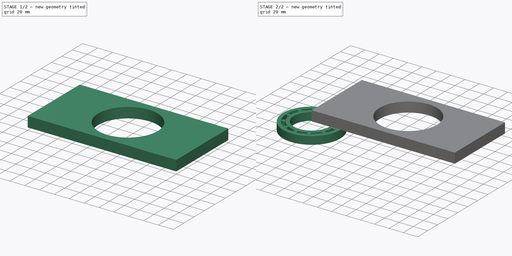
[diagram: build sequence overview — one tinted view per stage of 2, left to right]
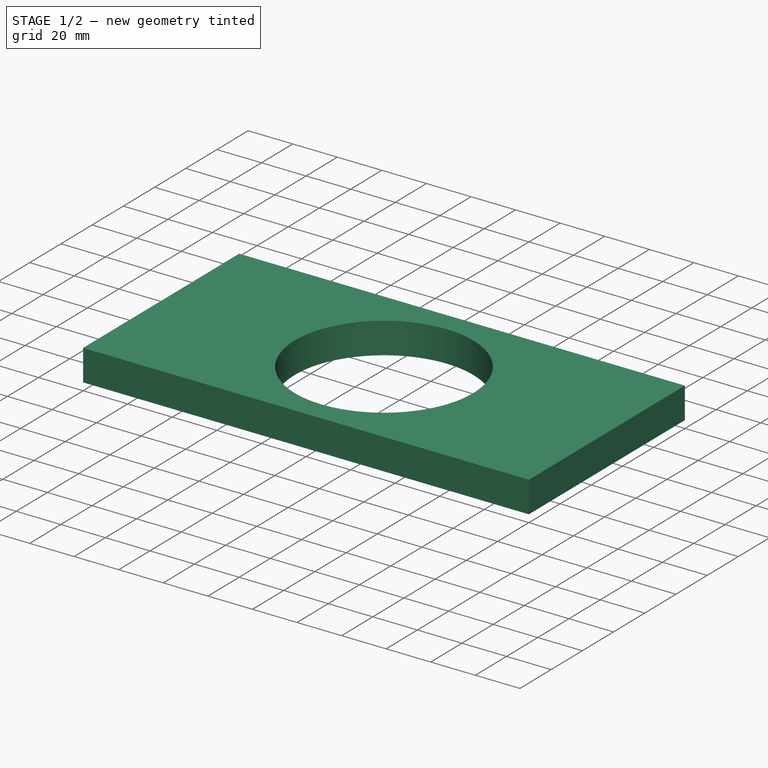
[diagram: stage 1 of 2 — iso view after this stage's code; geometry added in this stage tinted green]
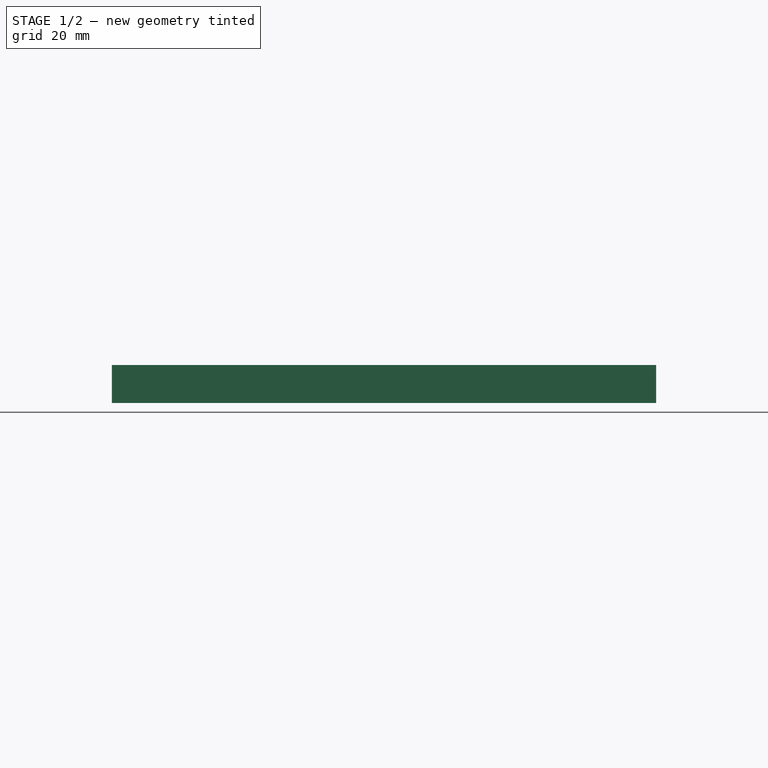
[diagram: stage 1 of 2 — front view after this stage's code; geometry added in this stage tinted green]
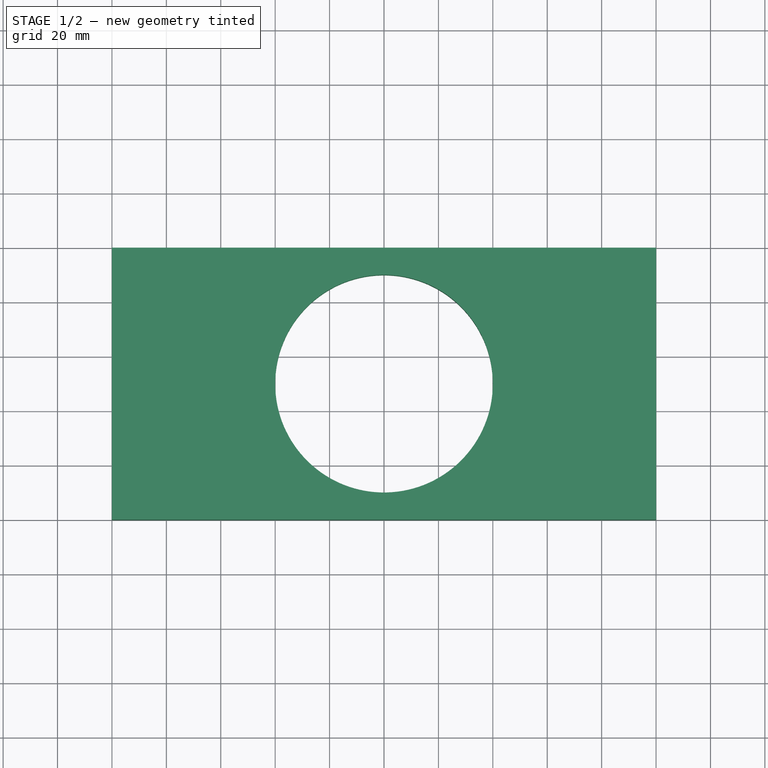
[diagram: stage 1 of 2 — top view after this stage's code; geometry added in this stage tinted green]
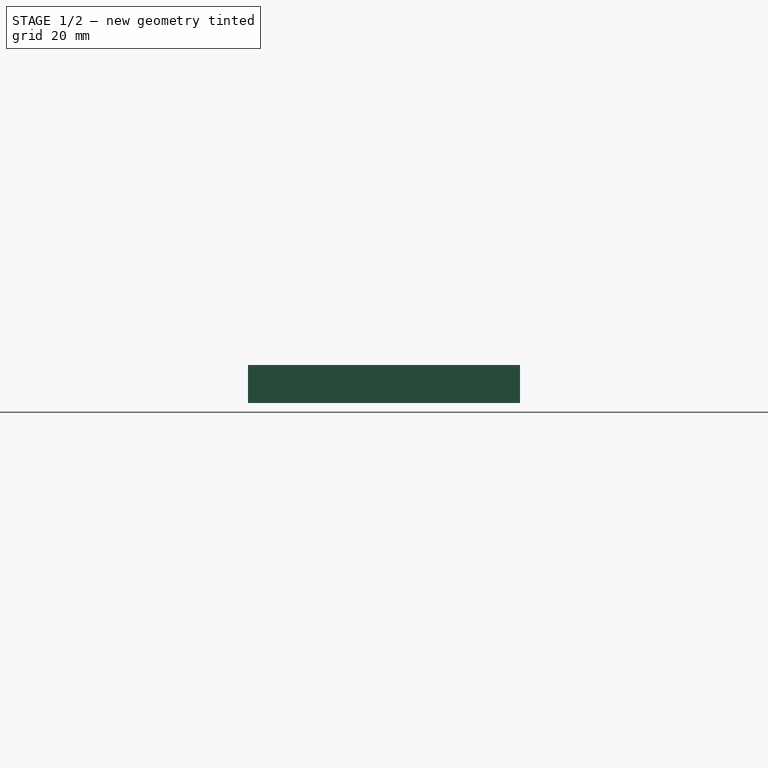
[diagram: stage 1 of 2 — right view after this stage's code; geometry added in this stage tinted green]
FCSTD DOCUMENT  (FreeCAD 0.19R24276 (Git))
Label: Assambly_Plate_200x100_otv_d80_bear
License: All rights reserved
LicenseURL: http://en.wikipedia.org/wiki/All_rights_reserved
objects: App::FeaturePython×4, Sketcher::SketchObject×1, PartDesign::Pad×1, PartDesign::Body×1, Part::FeaturePython×1
note: 5 computed .brp shape members not serialized (recipe doc carries the construction recipe); baked Part::Feature solids carry a one-line shape summary decoded from their .brp

FEATURE [Sketcher::SketchObject] Sketch
  FullyConstrained = true
  MapMode = 5
  Support = -> [XY_Plane]
  sketch-geometry (5):
    g0: LineSegment StartX=0 StartY=0 StartZ=0 EndX=200 EndY=0 EndZ=0
    g1: LineSegment StartX=200 StartY=0 StartZ=0 EndX=200 EndY=100 EndZ=0
    g2: LineSegment StartX=200 StartY=100 StartZ=0 EndX=0 EndY=100 EndZ=0
    g3: LineSegment StartX=0 StartY=100 StartZ=0 EndX=0 EndY=0 EndZ=0
    g4: Circle CenterX=100 CenterY=50 CenterZ=0 NormalX=0 NormalY=0 NormalZ=1 AngleXU=0 Radius=40
  constraints (13):
    c: Coincident(g0,g1)
    c: Coincident(g1,g2)
    c: Coincident(g2,g3)
    c: Coincident(g3,g0)
    c: Horizontal(g0)
    c: Horizontal(g2)
    c: Vertical(g1)
    c: Vertical(g3)
    c: Coincident(g0,g-1)
    c: DistanceY(g1,g1) = 100
    c: DistanceX(g0,g0) = 200
    c: Symmetric(g0,g1,g4)
    c: Diameter(g4) = 80
FEATURE [PartDesign::Pad] Pad
  Direction = (1,1,1)
  Length = 14
  Length2 = 100
  Placement = pos=(-100,-50,-11) rot=(0,0,1;0rad)
  Profile = -> Sketch
  Type = 0
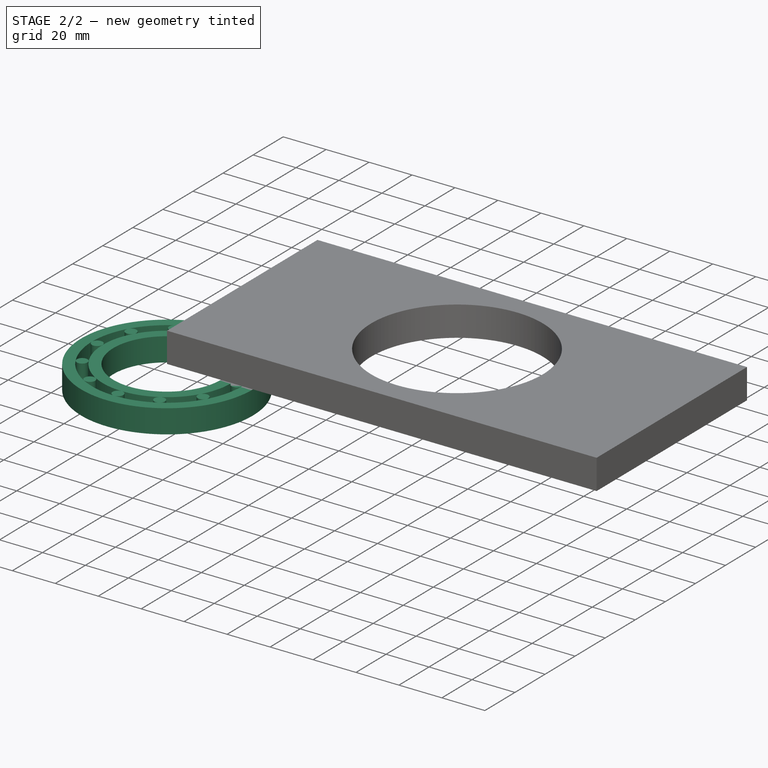
[diagram: stage 2 of 2 — iso view after this stage's code; geometry added in this stage tinted green]
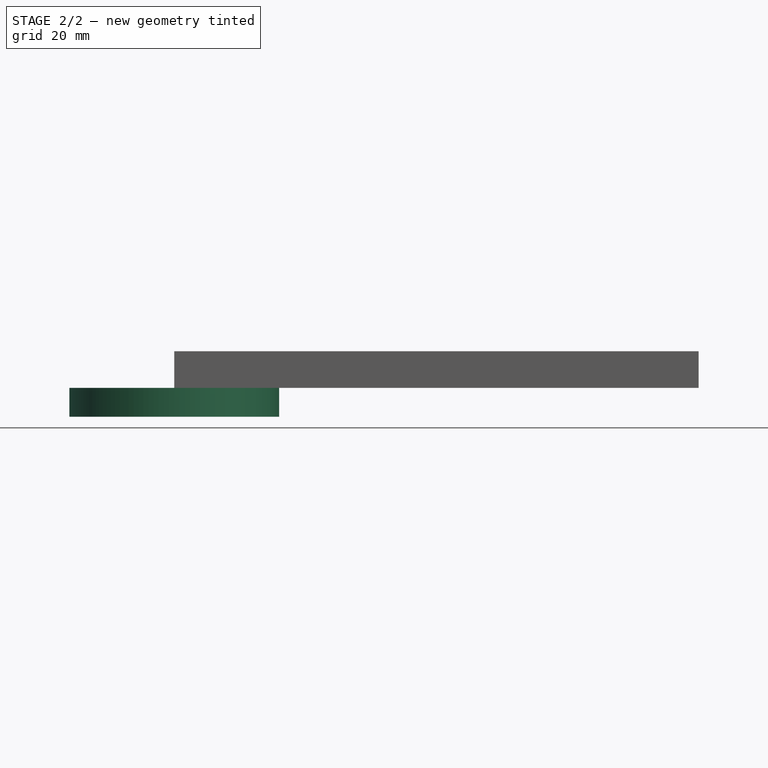
[diagram: stage 2 of 2 — front view after this stage's code; geometry added in this stage tinted green]
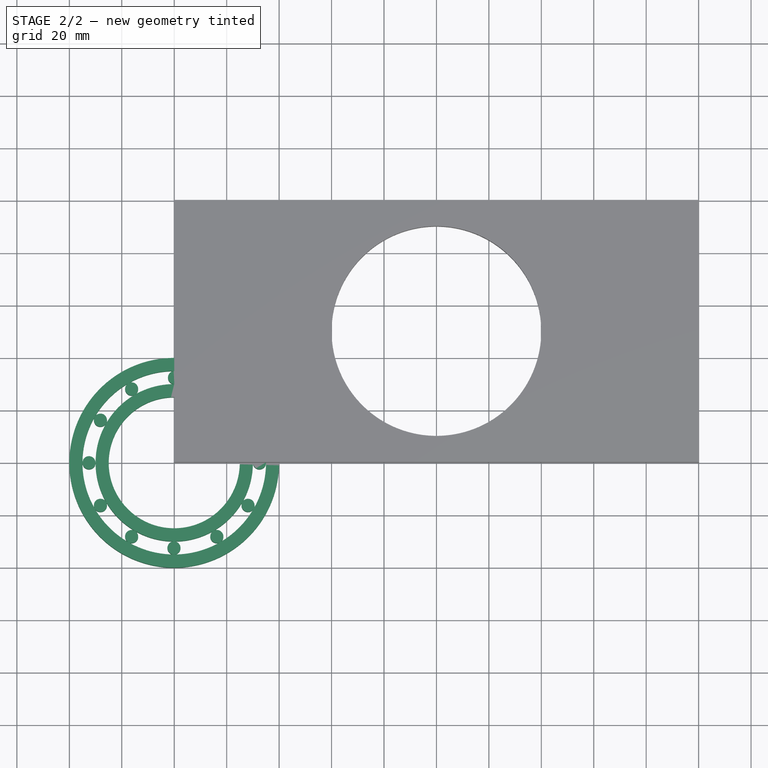
[diagram: stage 2 of 2 — top view after this stage's code; geometry added in this stage tinted green]
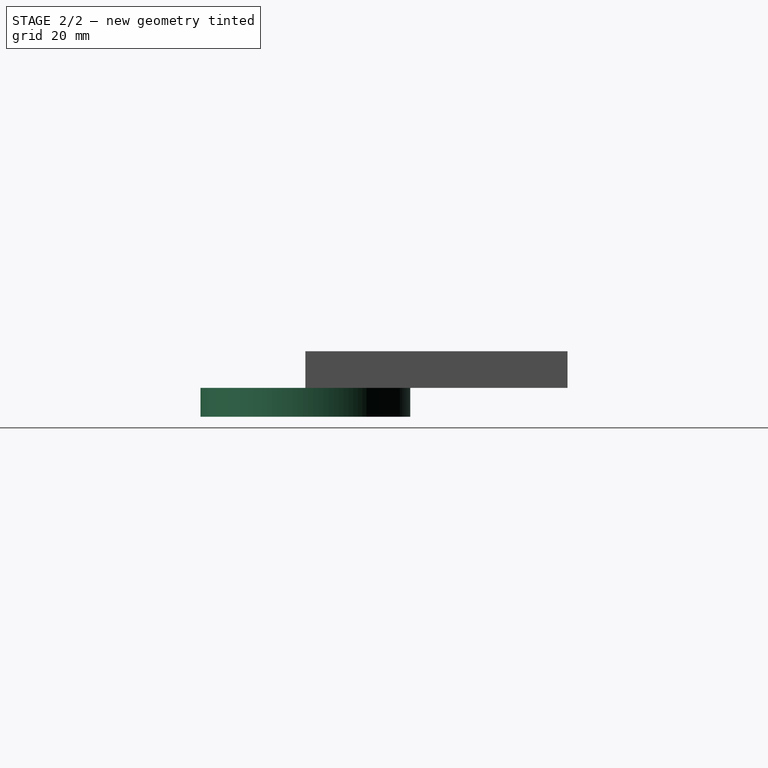
[diagram: stage 2 of 2 — right view after this stage's code; geometry added in this stage tinted green]
FEATURE [PartDesign::Body] Body
  Group = -> [Sketch,Pad]
  Origin = -> Origin
  Tip = -> Pad
FEATURE [Part::FeaturePython] b_Assambly_bearing_50x80x11_A2_001_  label="Assambly_bearing_50x80x11_A2_001"  # a2plus imported part (geometry in sourceFile) (typed FeaturePython)
  a2p_Version = V0.1
  fixedPosition = true
  objectType = a2pPart
  sourceFile = .\From_part_12\Bearing_50x80x11\Assambly_bearing_50x80x11_A2.FCStd
  subassemblyImport = true
  timeLastImport = 1.64742e+09
  updateColors = true
FEATURE [App::FeaturePython] axisCoincident_001  label="axisCoincident_001__Pad"  # a2plus constraint (typed FeaturePython)
  Object1 = b_Assambly_bearing_50x80x11_A2_001_
  Object2 = Pad
  ParentTreeObject = -> b_Assambly_bearing_50x80x11_A2_001_
  SubElement1 = Face1
  SubElement2 = Face5
  Suppressed = false
  Type = axial
  directionConstraint = 0
  lockRotation = false
FEATURE [App::FeaturePython] axisCoincident_001_mirror  label="axisCoincident_001__Assambly_bearing_50x80x11_A2_001"  # a2plus constraint (typed FeaturePython)
  Object1 = b_Assambly_bearing_50x80x11_A2_001_
  Object2 = Pad
  ParentTreeObject = -> Pad
  SubElement1 = Face1
  SubElement2 = Face5
  Suppressed = false
  Type = axial
  directionConstraint = 0
  lockRotation = false
FEATURE [App::FeaturePython] planeCoincident_001  label="planeCoincident_001__Pad"  # a2plus constraint (typed FeaturePython)
  Object1 = b_Assambly_bearing_50x80x11_A2_001_
  Object2 = Pad
  ParentTreeObject = -> b_Assambly_bearing_50x80x11_A2_001_
  SubElement1 = Face2
  SubElement2 = Face6
  Suppressed = false
  Type = plane
  directionConstraint = 0
  offset = 0
FEATURE [App::FeaturePython] planeCoincident_001_mirror  label="planeCoincident_001__Assambly_bearing_50x80x11_A2_001"  # a2plus constraint (typed FeaturePython)
  Object1 = b_Assambly_bearing_50x80x11_A2_001_
  Object2 = Pad
  ParentTreeObject = -> Pad
  SubElement1 = Face2
  SubElement2 = Face6
  Suppressed = false
  Type = plane
  directionConstraint = 0
  offset = 0
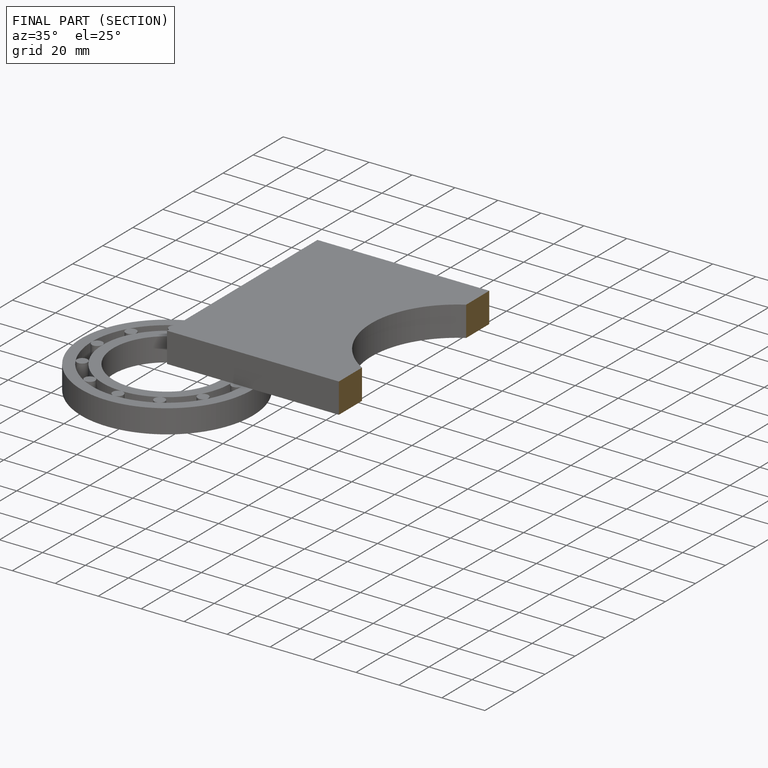
[diagram: finished part — half-section view (interior)]
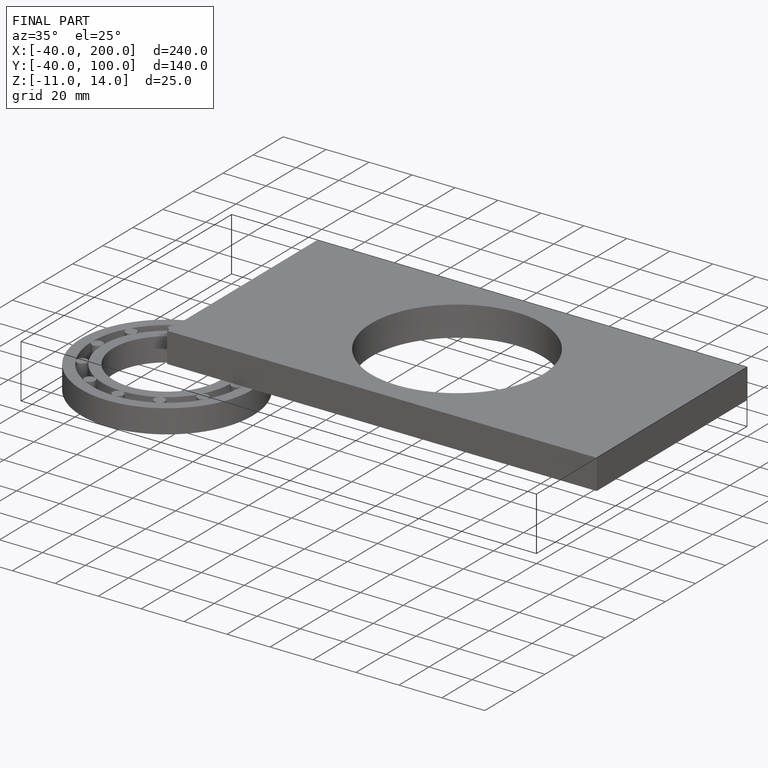
[diagram: finished part — iso view with bounding-box wireframe]
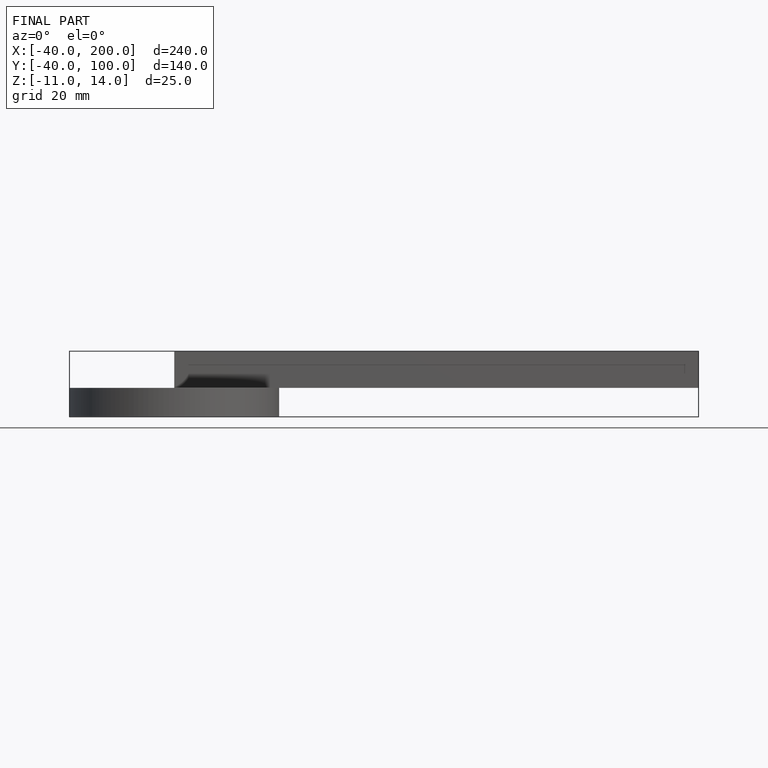
[diagram: finished part — front view with bounding-box wireframe]
